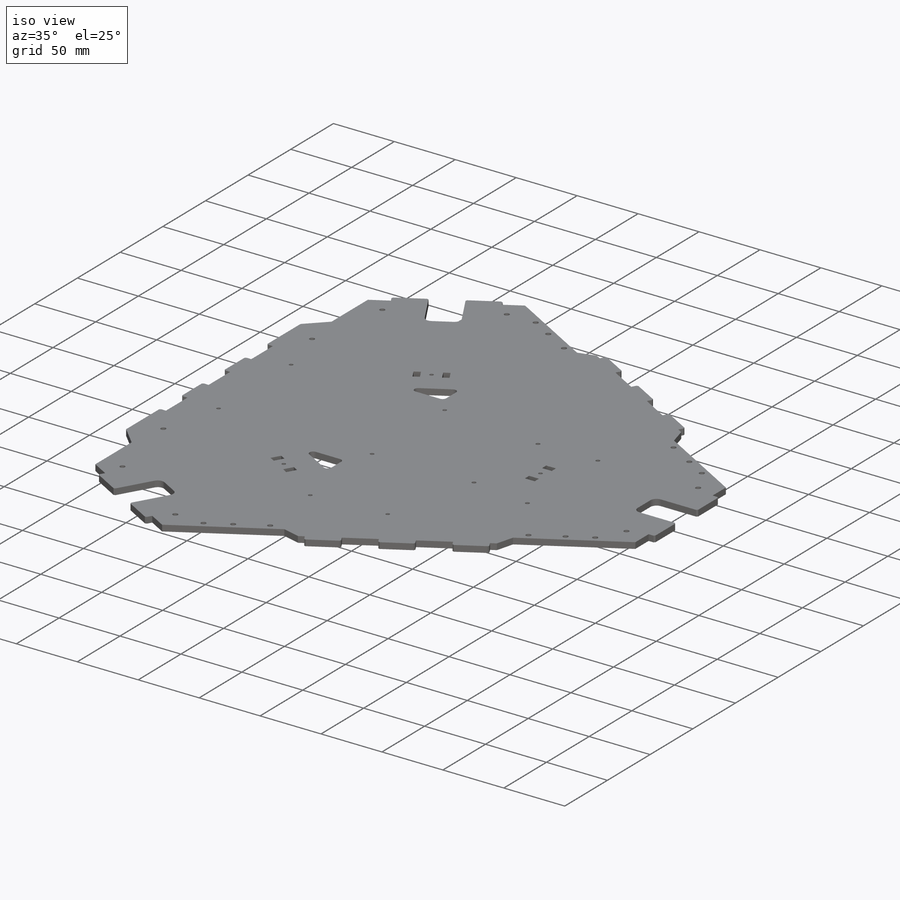
[diagram: iso view]
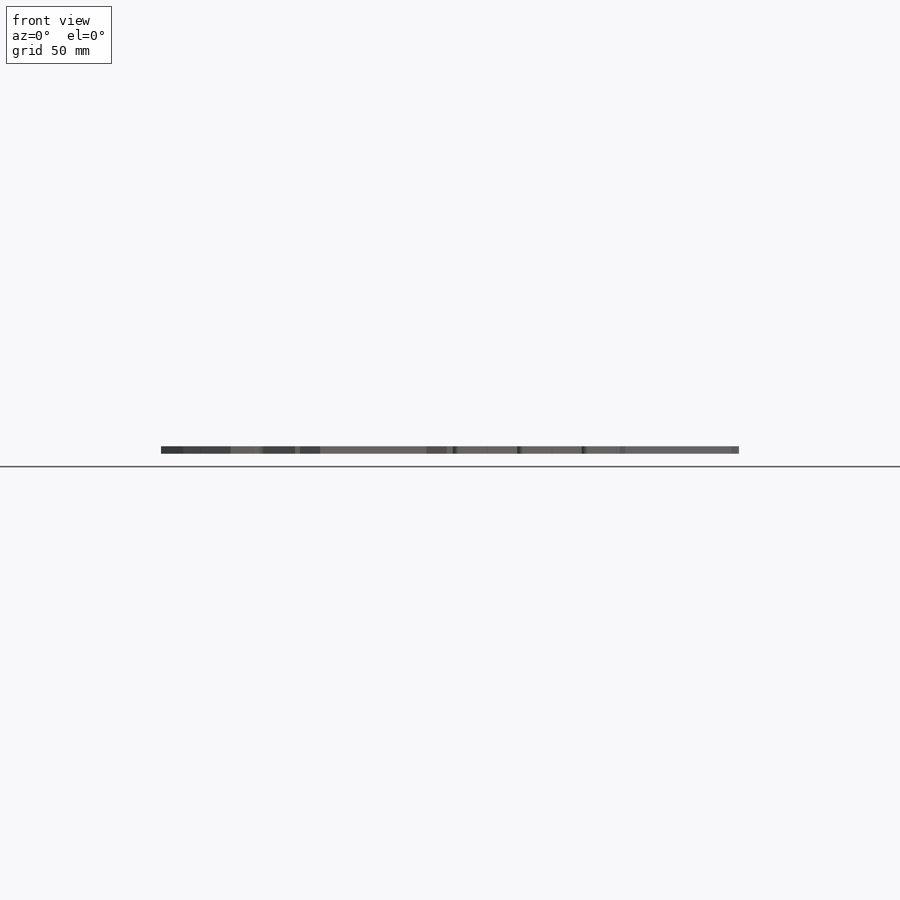
[diagram: front view]
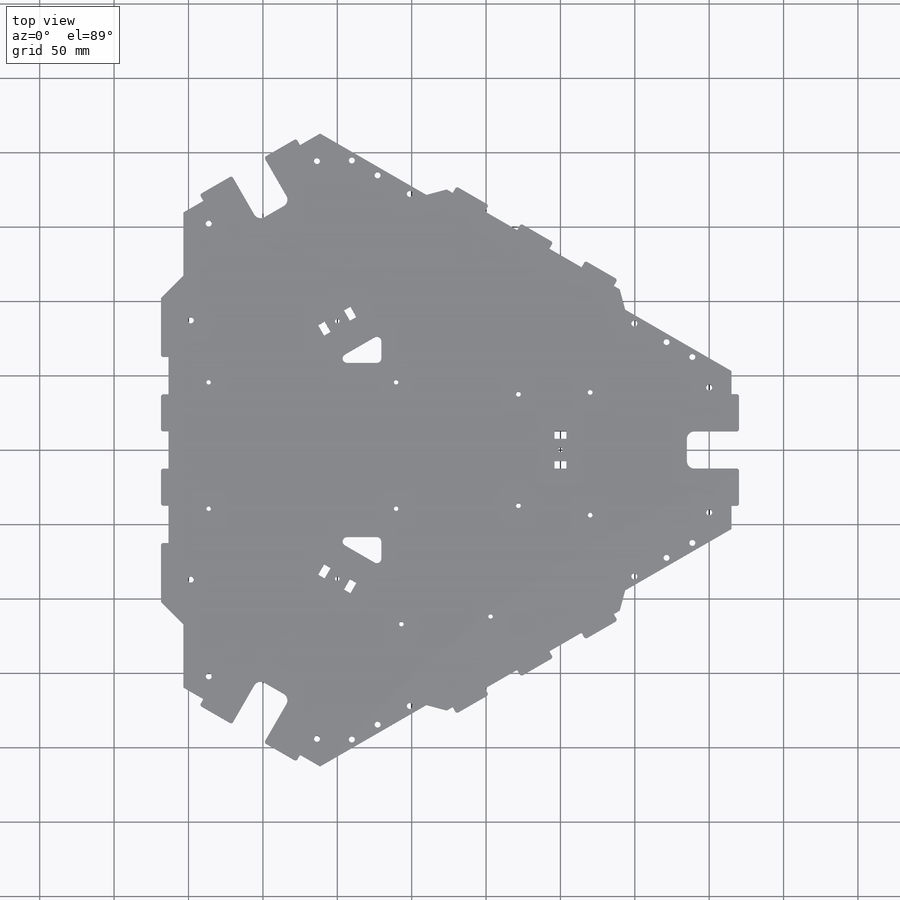
[diagram: top view]
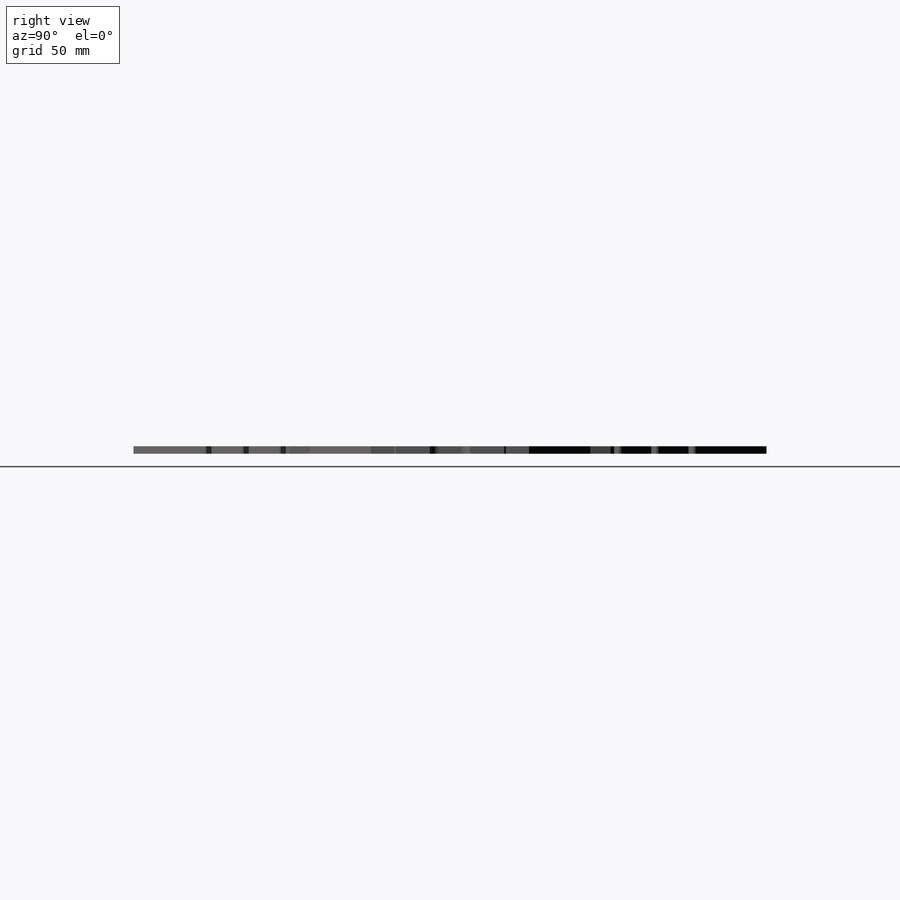
[diagram: right view]
SOLIDWORKS PART (.sldprt)
format: sldprt  version: not decoded by parser v0  size: 681,472 bytes
history: native  units: mm
features: sketch x8, cut_extrude x5, extrude x3, material x1, chamfer x1 (+18 scaffold rows collapsed; 6 parser-record rows omitted)
feature tree (42):
  scaffold x18  (default folders/planes/origin — collapsed)
  material  "Material <not specified>"
  parser-record x6  (decoder bookkeeping rows leaked as tree rows — omitted from the tree; the rows remain in map.json)
  sketch  "Sketch11"  dims[D1=0.0mm D2=0.0mm D3=0.0mm D4=0.0mm D5=0.0mm D6=0.0mm D7=0.0mm]
  extrude  "Boss-Extrude3"  [1 undecoded]
  sketch  "Sketch2"  dims[D4=3.0mm D1=17.0mm D2=126.0mm D3=85.0mm D5=39.5mm]
  cut_extrude  "Cut-Extrude2"  [1 undecoded]
  sketch  "Sketch6"  dims[D1=25.2mm D2=5.0mm D3=24.8mm D4=25.2mm]
  cut_extrude  "Cut-Extrude6"  [1 undecoded]
  sketch  "Sketch7"  dims[D1=5.0mm D2=25.0mm D3=25.0mm]
  extrude  "Boss-Extrude1"  [1 undecoded]
  sketch  "Sketch8"  dims[D1=5.0mm D2=25.0mm D3=25.0mm]
  extrude  "Boss-Extrude2"  [1 undecoded]
  chamfer  "Chamfer1"  Distance=1mm Angle=45deg
  sketch  "Sketch9"  dims[c1.D7=3.5mm c1.D2=~3.199994mm c1.D1=~13.795512mm c2.D2=48.26mm c2.D3=82.55mm c3.D2=~82.527767mm c4.D2=~1.507436deg c5.D2=~15.065512mm c5.D4=~48.276708mm c5.D5=~44.093458mm c5.D6=6.35mm c5.D1=~0.200457mm c5.D3=~7.617363mm c6.D4=~1.97116mm c6.D5=~74.904068mm c6.D6=~48.276708mm c6.D3=~7.617363mm c6.D7=95.0mm]
  cut_extrude  "Cut-Extrude7"  [1 undecoded]
  sketch  "Sketch4"  dims[D5=3.0mm D1=25.5mm D2=54.5mm D3=40.0mm D4=10.0mm]
  cut_extrude  "Cut-Extrude4"  [1 undecoded]
  sketch  "Sketch10"  dims[D3=3.0mm D1=18.0mm D2=22.0mm D4=20.0mm]
  cut_extrude  "Cut-Extrude8"  [1 undecoded]
decode coverage: 9 of 17 modeling features carry decoded parameters
note: ~ marks probable driven/reference dimensions
note: 8 parameter values undecoded
summary: no parameter record found for 8 features
note: suppression state not decoded; provenance and decode notes live in map.json
